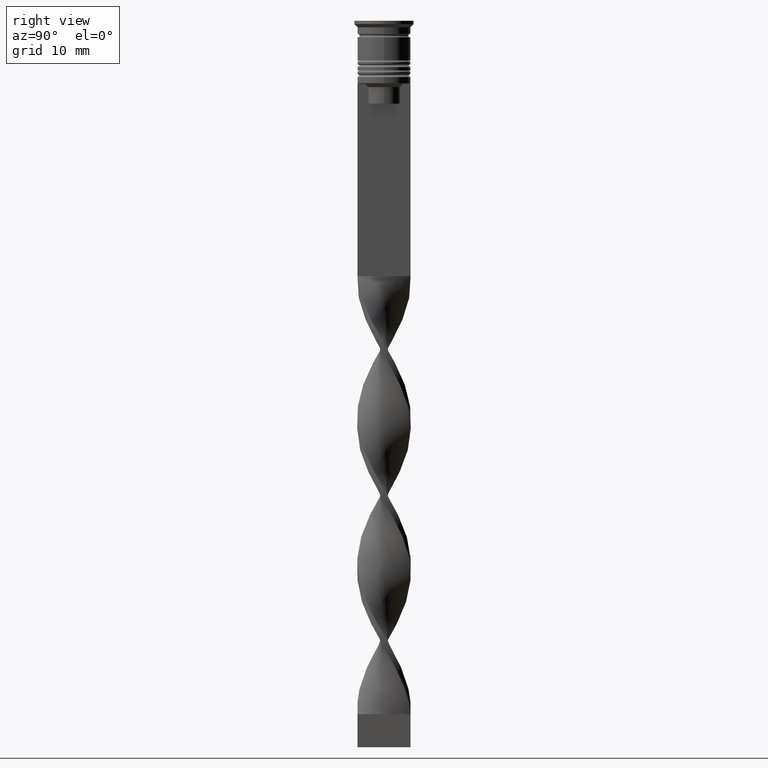
[diagram: clean part render]
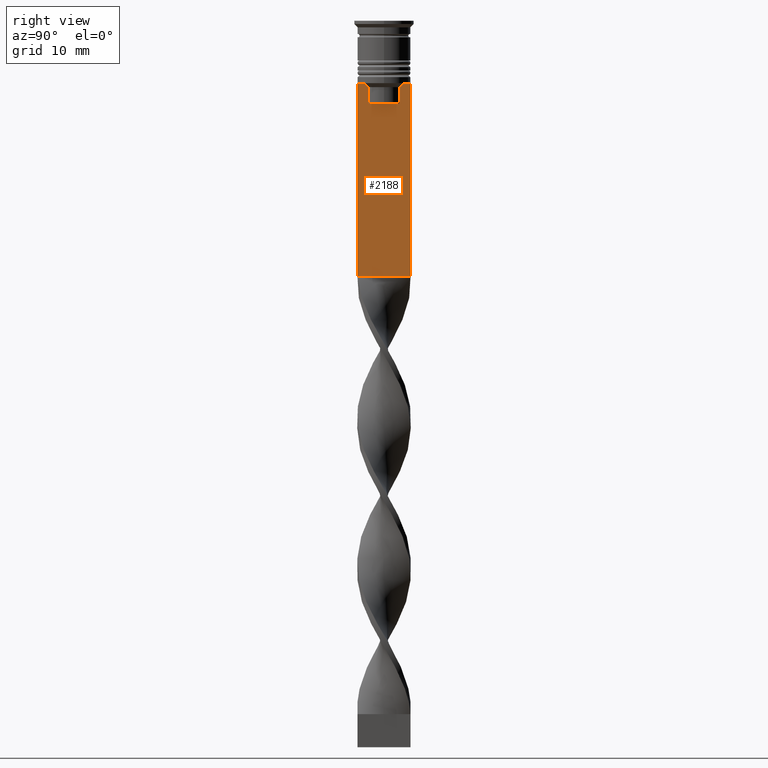
[diagram: same view with one face highlighted and labeled with its STEP entity id]
A machine part, right view. The second image highlights one B-rep face of the part: STEP entity #2188.
In plain terms, the highlighted planar face has unit normal (-1, 0, 0).
Its self-contained STEP definition (entity closure, byte-faithful):
#9 = VERTEX_POINT ( 'NONE', #3612 ) ;
#68 = DIRECTION ( 'NONE',  ( 0.000000000000000000, -1.000000000000000000, 0.000000000000000000 ) ) ;
#107 = DIRECTION ( 'NONE',  ( 0.000000000000000000, -1.000000000000000000, 0.000000000000000000 ) ) ;
#163 = CARTESIAN_POINT ( 'NONE',  ( 0.5000000000000000000, 2.687094542495898075, -9.666938847453439010 ) ) ;
#189 = VECTOR ( 'NONE', #3426, 1000.000000000000000 ) ;
#235 = EDGE_CURVE ( 'NONE', #583, #9, #3339, .T. ) ;
#255 = EDGE_LOOP ( 'NONE', ( #2634, #2120, #1238, #2872, #2858, #485, #1256, #1477, #1895, #2614, #2165, #1132 ) ) ;
#350 = EDGE_CURVE ( 'NONE', #3349, #362, #604, .T. ) ;
#362 = VERTEX_POINT ( 'NONE', #1449 ) ;
#374 = FACE_OUTER_BOUND ( 'NONE', #255, .T. ) ;
#480 = EDGE_CURVE ( 'NONE', #979, #2249, #1927, .T. ) ;
#483 = CARTESIAN_POINT ( 'NONE',  ( 0.5000000000000000000, -2.517408374291112416, -9.833662228483172285 ) ) ;
#485 = ORIENTED_EDGE ( 'NONE', *, *, #1816, .T. ) ;
#502 = VECTOR ( 'NONE', #1005, 1000.000000000000000 ) ;
#583 = VERTEX_POINT ( 'NONE', #3294 ) ;
#604 = LINE ( 'NONE', #2276, #189 ) ;
#610 = VECTOR ( 'NONE', #68, 1000.000000000000000 ) ;
#628 = VERTEX_POINT ( 'NONE', #3636 ) ;
#690 = CARTESIAN_POINT ( 'NONE',  ( 0.5000000000000000000, 2.347338918861097135, 0.000000000000000000 ) ) ;
#701 = PLANE ( 'NONE',  #2352 ) ;
#708 = CARTESIAN_POINT ( 'NONE',  ( 0.5000000000000000000, -2.347338918861097135, -10.00000000000000000 ) ) ;
#720 = DIRECTION ( 'NONE',  ( 0.000000000000000000, -1.000000000000000000, 0.000000000000000000 ) ) ;
#722 = VECTOR ( 'NONE', #107, 1000.000000000000000 ) ;
#729 = CARTESIAN_POINT ( 'NONE',  ( 0.5000000000000000000, -2.687095498514037839, -9.666937905752043037 ) ) ;
#841 = VECTOR ( 'NONE', #720, 1000.000000000000000 ) ;
#979 = VERTEX_POINT ( 'NONE', #1645 ) ;
#984 = CARTESIAN_POINT ( 'NONE',  ( 0.5000000000000000000, 4.000000000000000000, -38.50000000000000000 ) ) ;
#990 = CARTESIAN_POINT ( 'NONE',  ( 0.5000000000000000000, -4.000000000000000000, -38.50000000000000000 ) ) ;
#991 = CARTESIAN_POINT ( 'NONE',  ( 0.5000000000000000000, 2.347338918861097135, -10.00000000000000000 ) ) ;
#1002 = CARTESIAN_POINT ( 'NONE',  ( 0.5000000000000000000, -4.000000000000000000, -9.500000000000000000 ) ) ;
#1005 = DIRECTION ( 'NONE',  ( 0.000000000000000000, 0.000000000000000000, -1.000000000000000000 ) ) ;
#1007 = VECTOR ( 'NONE', #2995, 1000.000000000000000 ) ;
#1018 = B_SPLINE_CURVE_WITH_KNOTS ( 'NONE', 3,
 ( #708, #483, #729, #3521 ),
 .UNSPECIFIED., .F., .F.,
 ( 4, 4 ),
 ( 0.01178336557230038467, 0.01249758354768160280 ),
 .UNSPECIFIED. ) ;
#1132 = ORIENTED_EDGE ( 'NONE', *, *, #1629, .T. ) ;
#1208 = VECTOR ( 'NONE', #2116, 1000.000000000000000 ) ;
#1238 = ORIENTED_EDGE ( 'NONE', *, *, #1808, .T. ) ;
#1256 = ORIENTED_EDGE ( 'NONE', *, *, #235, .T. ) ;
#1302 = VECTOR ( 'NONE', #2571, 1000.000000000000000 ) ;
#1449 = CARTESIAN_POINT ( 'NONE',  ( 0.5000000000000000000, -4.000000000000000000, -38.50000000000000000 ) ) ;
#1450 = CARTESIAN_POINT ( 'NONE',  ( 0.5000000000000000000, -4.000000000000000000, -9.500000000000000000 ) ) ;
#1452 = DIRECTION ( 'NONE',  ( 0.000000000000000000, 0.000000000000000000, 1.000000000000000000 ) ) ;
#1469 = DIRECTION ( 'NONE',  ( -1.000000000000000000, 0.000000000000000000, 0.000000000000000000 ) ) ;
#1477 = ORIENTED_EDGE ( 'NONE', *, *, #2314, .T. ) ;
#1547 = DIRECTION ( 'NONE',  ( 0.000000000000000000, 1.000000000000000000, 0.000000000000000000 ) ) ;
#1600 = CARTESIAN_POINT ( 'NONE',  ( 0.5000000000000000000, 4.000000000000000000, -9.500000000000000000 ) ) ;
#1618 = VERTEX_POINT ( 'NONE', #2328 ) ;
#1629 = EDGE_CURVE ( 'NONE', #1919, #979, #2853, .T. ) ;
#1645 = CARTESIAN_POINT ( 'NONE',  ( 0.5000000000000000000, 3.867815921162741422, -9.500000000000000000 ) ) ;
#1722 = LINE ( 'NONE', #1450, #1302 ) ;
#1778 = EDGE_CURVE ( 'NONE', #362, #2097, #2402, .T. ) ;
#1808 = EDGE_CURVE ( 'NONE', #3507, #628, #1843, .T. ) ;
#1816 = EDGE_CURVE ( 'NONE', #1618, #583, #1018, .T. ) ;
#1843 = LINE ( 'NONE', #690, #502 ) ;
#1869 = VERTEX_POINT ( 'NONE', #2681 ) ;
#1895 = ORIENTED_EDGE ( 'NONE', *, *, #350, .T. ) ;
#1919 = VERTEX_POINT ( 'NONE', #1600 ) ;
#1927 = LINE ( 'NONE', #3073, #1007 ) ;
#2097 = VERTEX_POINT ( 'NONE', #984 ) ;
#2116 = DIRECTION ( 'NONE',  ( 0.000000000000000000, 0.000000000000000000, -1.000000000000000000 ) ) ;
#2120 = ORIENTED_EDGE ( 'NONE', *, *, #2665, .T. ) ;
#2165 = ORIENTED_EDGE ( 'NONE', *, *, #3270, .F. ) ;
#2171 = VECTOR ( 'NONE', #2500, 1000.000000000000000 ) ;
#2188 = ADVANCED_FACE ( 'NONE', ( #374 ), #701, .F. ) ;
#2245 = CARTESIAN_POINT ( 'NONE',  ( 0.5000000000000000000, -4.000000000000000000, -9.500000000000000000 ) ) ;
#2249 = VERTEX_POINT ( 'NONE', #3578 ) ;
#2253 = CARTESIAN_POINT ( 'NONE',  ( 0.5000000000000000000, 2.856571371417138572, -9.500000000000000000 ) ) ;
#2258 = EDGE_CURVE ( 'NONE', #628, #1869, #3274, .T. ) ;
#2276 = CARTESIAN_POINT ( 'NONE',  ( 0.5000000000000000000, -4.000000000000000000, -1.437742251701450202 ) ) ;
#2286 = VECTOR ( 'NONE', #1547, 1000.000000000000000 ) ;
#2314 = EDGE_CURVE ( 'NONE', #9, #3349, #1722, .T. ) ;
#2328 = CARTESIAN_POINT ( 'NONE',  ( 0.5000000000000000000, -2.347338918861097135, -10.00000000000000000 ) ) ;
#2338 = CARTESIAN_POINT ( 'NONE',  ( 0.5000000000000000000, -4.000000000000000000, -1.437742251701450202 ) ) ;
#2352 = AXIS2_PLACEMENT_3D ( 'NONE', #2338, #1469, #1452 ) ;
#2364 = LINE ( 'NONE', #3504, #1208 ) ;
#2392 = CARTESIAN_POINT ( 'NONE',  ( 0.5000000000000000000, 2.347338918861097135, -10.00000000000000000 ) ) ;
#2402 = LINE ( 'NONE', #990, #2286 ) ;
#2500 = DIRECTION ( 'NONE',  ( -0.000000000000000000, -0.000000000000000000, 1.000000000000000000 ) ) ;
#2535 = B_SPLINE_CURVE_WITH_KNOTS ( 'NONE', 3,
 ( #2253, #163, #3282, #991 ),
 .UNSPECIFIED., .F., .F.,
 ( 4, 4 ),
 ( 0.004956812174141191595, 0.005670477137898149653 ),
 .UNSPECIFIED. ) ;
#2571 = DIRECTION ( 'NONE',  ( 0.000000000000000000, -1.000000000000000000, 0.000000000000000000 ) ) ;
#2576 = CARTESIAN_POINT ( 'NONE',  ( 0.5000000000000000000, -4.000000000000000000, -9.500000000000000000 ) ) ;
#2614 = ORIENTED_EDGE ( 'NONE', *, *, #1778, .T. ) ;
#2634 = ORIENTED_EDGE ( 'NONE', *, *, #480, .T. ) ;
#2665 = EDGE_CURVE ( 'NONE', #2249, #3507, #2535, .T. ) ;
#2681 = CARTESIAN_POINT ( 'NONE',  ( 0.5000000000000000000, -2.347338918861097135, -12.50000000000000000 ) ) ;
#2722 = LINE ( 'NONE', #3317, #2171 ) ;
#2853 = LINE ( 'NONE', #2576, #722 ) ;
#2858 = ORIENTED_EDGE ( 'NONE', *, *, #2926, .T. ) ;
#2872 = ORIENTED_EDGE ( 'NONE', *, *, #2258, .T. ) ;
#2926 = EDGE_CURVE ( 'NONE', #1869, #1618, #2722, .T. ) ;
#2995 = DIRECTION ( 'NONE',  ( 0.000000000000000000, -1.000000000000000000, 0.000000000000000000 ) ) ;
#3013 = CARTESIAN_POINT ( 'NONE',  ( 0.5000000000000000000, 2.399999999999996803, -12.50000000000000000 ) ) ;
#3073 = CARTESIAN_POINT ( 'NONE',  ( 0.5000000000000000000, -4.000000000000000000, -9.500000000000000000 ) ) ;
#3270 = EDGE_CURVE ( 'NONE', #1919, #2097, #2364, .T. ) ;
#3274 = LINE ( 'NONE', #3013, #841 ) ;
#3282 = CARTESIAN_POINT ( 'NONE',  ( 0.5000000000000000000, 2.517407211010872281, -9.833663366238582171 ) ) ;
#3294 = CARTESIAN_POINT ( 'NONE',  ( 0.5000000000000000000, -2.856571371417138572, -9.500000000000000000 ) ) ;
#3317 = CARTESIAN_POINT ( 'NONE',  ( 0.5000000000000000000, -2.347338918861097135, 0.000000000000000000 ) ) ;
#3339 = LINE ( 'NONE', #1002, #610 ) ;
#3349 = VERTEX_POINT ( 'NONE', #2245 ) ;
#3426 = DIRECTION ( 'NONE',  ( 0.000000000000000000, 0.000000000000000000, -1.000000000000000000 ) ) ;
#3504 = CARTESIAN_POINT ( 'NONE',  ( 0.5000000000000000000, 4.000000000000000000, -1.437742251701450202 ) ) ;
#3507 = VERTEX_POINT ( 'NONE', #2392 ) ;
#3521 = CARTESIAN_POINT ( 'NONE',  ( 0.5000000000000000000, -2.856571371417138572, -9.500000000000000000 ) ) ;
#3578 = CARTESIAN_POINT ( 'NONE',  ( 0.5000000000000000000, 2.856571371417138572, -9.500000000000000000 ) ) ;
#3612 = CARTESIAN_POINT ( 'NONE',  ( 0.5000000000000000000, -3.867815921162741422, -9.500000000000000000 ) ) ;
#3636 = CARTESIAN_POINT ( 'NONE',  ( 0.5000000000000000000, 2.347338918861097135, -12.50000000000000000 ) ) ;